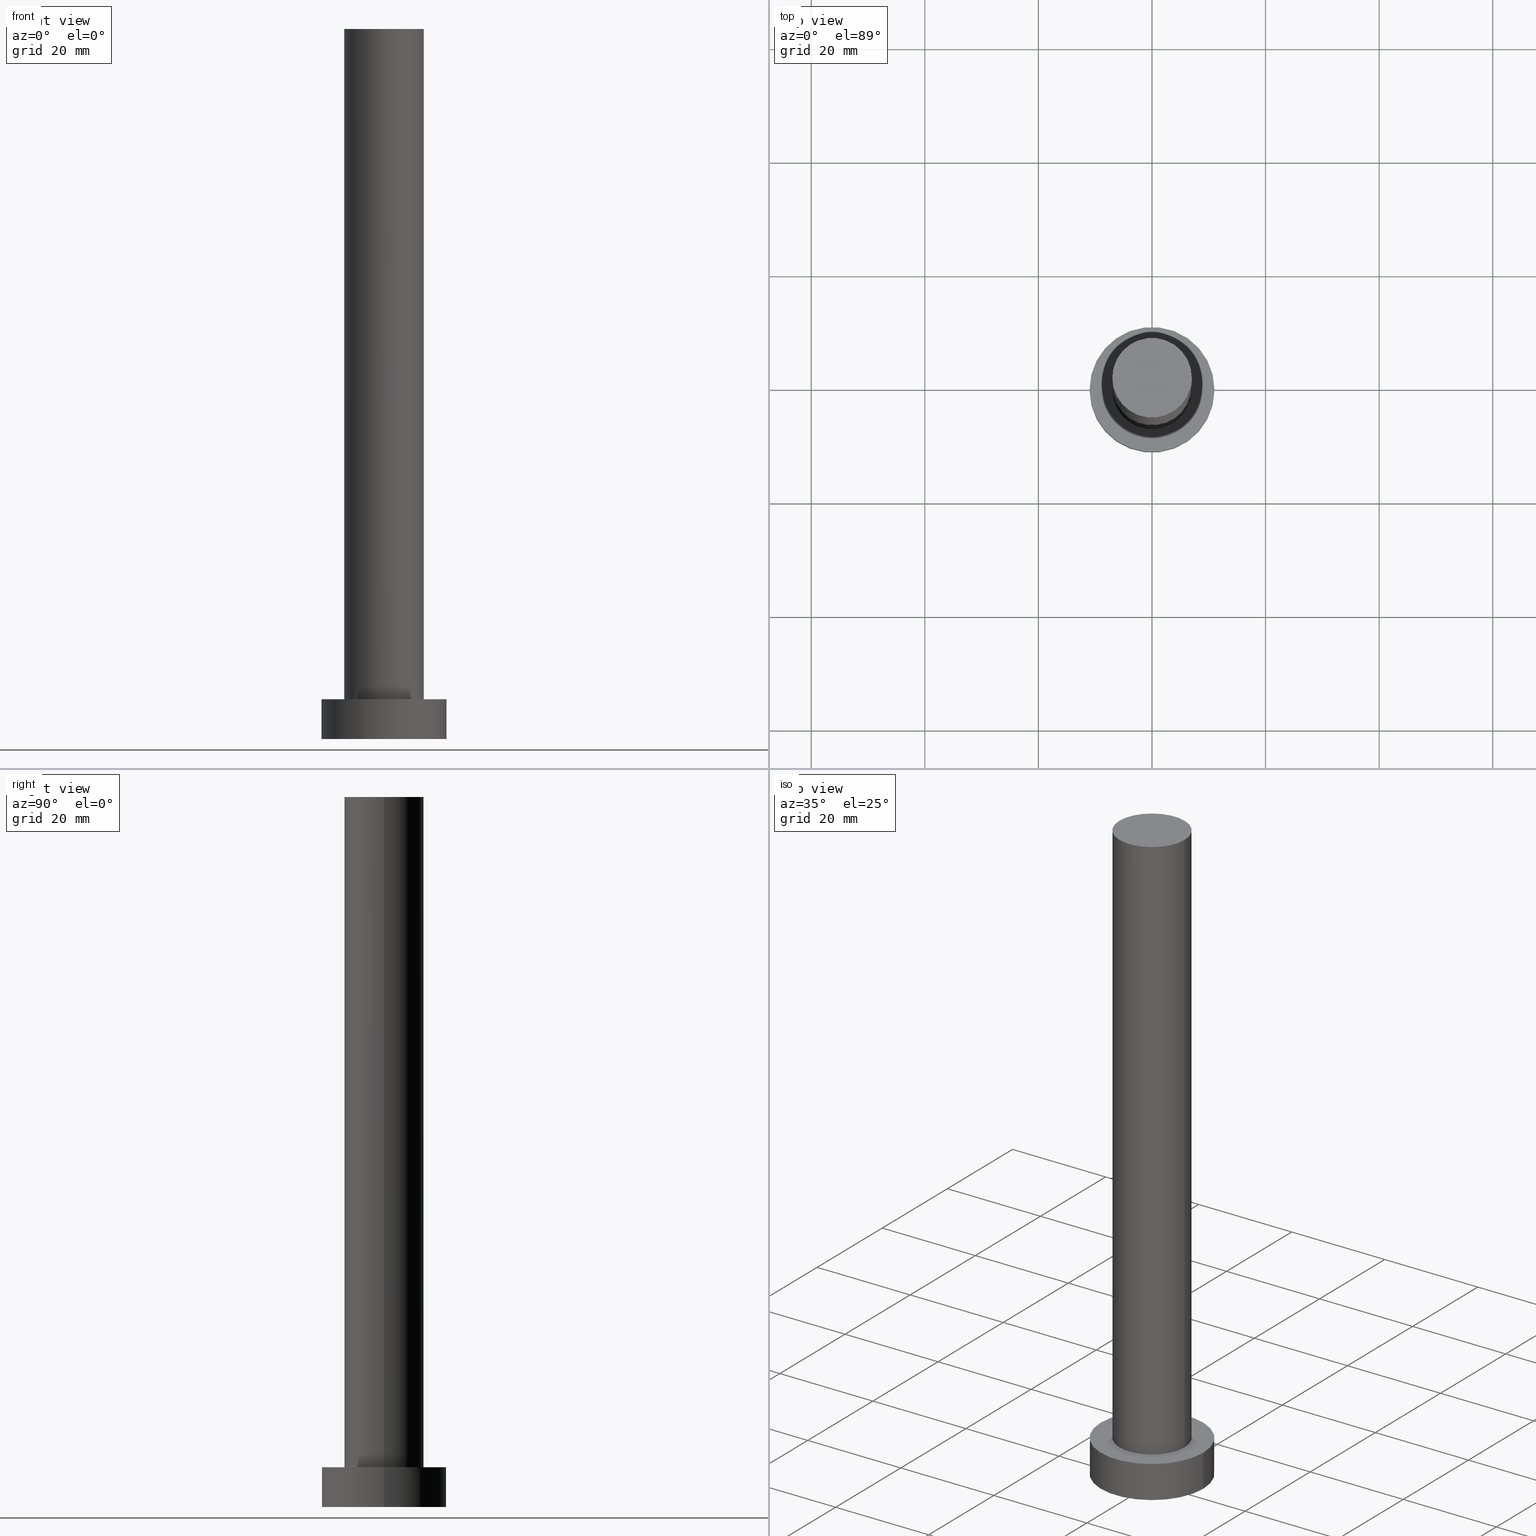
[diagram: canonical four-view strip — front | top / right | iso, engineering-drawing reading convention]
A machine part, canonical four-view strip (front | top / right | iso — engineering-drawing reading convention). The complete STEP part file that produces these views, byte-faithful:
ISO-10303-21;
HEADER;
FILE_DESCRIPTION (( 'STEP AP203' ),
    '1' );
FILE_NAME ('af2a.STEP',
    '2023-02-13T10:43:44',
    ( '' ),
    ( '' ),
    'SwSTEP 2.0',
    'SolidWorks 2019',
    '' );
FILE_SCHEMA (( 'CONFIG_CONTROL_DESIGN' ));
ENDSEC;

DATA;
#1 = COORDINATED_UNIVERSAL_TIME_OFFSET ( 1, 0, .AHEAD. ) ;
#2 = CARTESIAN_POINT ( 'NONE',  ( 0.000000000000000000, 0.000000000000000000, 7.000000000000000000 ) ) ;
#3 = DIRECTION ( 'NONE',  ( -0.000000000000000000, -0.000000000000000000, -1.000000000000000000 ) ) ;
#4 = ORIENTED_EDGE ( 'NONE', *, *, #100, .F. ) ;
#5 = ORIENTED_EDGE ( 'NONE', *, *, #89, .T. ) ;
#6 = LINE ( 'NONE', #182, #122 ) ;
#7 = EDGE_CURVE ( 'NONE', #185, #31, #6, .T. ) ;
#8 = VERTEX_POINT ( 'NONE', #225 ) ;
#9 = CARTESIAN_POINT ( 'NONE',  ( 0.000000000000000000, 0.000000000000000000, 0.000000000000000000 ) ) ;
#10 = PRODUCT_DEFINITION_SHAPE ( 'NONE', 'NONE',  #51 ) ;
#11 = AXIS2_PLACEMENT_3D ( 'NONE', #139, #44, #102 ) ;
#12 = LOCAL_TIME ( 11, 43, 44.00000000000000000, #255 ) ;
#13 = DIRECTION ( 'NONE',  ( -0.000000000000000000, -0.000000000000000000, -1.000000000000000000 ) ) ;
#14 = PLANE ( 'NONE',  #45 ) ;
#15 = ADVANCED_FACE ( 'NONE', ( #28 ), #25, .T. ) ;
#16 = CIRCLE ( 'NONE', #163, 11.00000000000000000 ) ;
#17 = DATE_AND_TIME ( #59, #166 ) ;
#18 = ORIENTED_EDGE ( 'NONE', *, *, #7, .F. ) ;
#19 = DIRECTION ( 'NONE',  ( 0.000000000000000000, 0.000000000000000000, 1.000000000000000000 ) ) ;
#20 = DESIGN_CONTEXT ( 'detailed design', #136, 'design' ) ;
#21 = PERSON_AND_ORGANIZATION_ROLE ( 'creator' ) ;
#22 = DIRECTION ( 'NONE',  ( -0.000000000000000000, -0.000000000000000000, -1.000000000000000000 ) ) ;
#23 = PERSON_AND_ORGANIZATION_ROLE ( 'design_owner' ) ;
#24 = CYLINDRICAL_SURFACE ( 'NONE', #83, 11.00000000000000000 ) ;
#25 = CYLINDRICAL_SURFACE ( 'NONE', #97, 7.000000000000000000 ) ;
#26 = ORIENTED_EDGE ( 'NONE', *, *, #37, .T. ) ;
#27 = EDGE_LOOP ( 'NONE', ( #212, #99 ) ) ;
#28 = FACE_OUTER_BOUND ( 'NONE', #142, .T. ) ;
#29 = CIRCLE ( 'NONE', #75, 7.000000000000000000 ) ;
#30 = DIRECTION ( 'NONE',  ( 1.000000000000000000, 0.000000000000000000, -0.000000000000000000 ) ) ;
#31 = VERTEX_POINT ( 'NONE', #202 ) ;
#32 = CARTESIAN_POINT ( 'NONE',  ( -11.00000000000000000, 0.000000000000000000, 0.000000000000000000 ) ) ;
#33 = CARTESIAN_POINT ( 'NONE',  ( 11.00000000000000000, 1.347111479062088405E-15, 7.000000000000000000 ) ) ;
#34 = CARTESIAN_POINT ( 'NONE',  ( 0.000000000000000000, 0.000000000000000000, 7.000000000000000000 ) ) ;
#35 = ORGANIZATION ( 'NEUR�EN�', 'NEUR�EN�', '' ) ;
#36 = EDGE_CURVE ( 'NONE', #84, #147, #80, .T. ) ;
#37 = EDGE_CURVE ( 'NONE', #185, #206, #64, .T. ) ;
#38 = DATE_AND_TIME ( #57, #12 ) ;
#39 = CC_DESIGN_APPROVAL ( #133, ( #51 ) ) ;
#40 = EDGE_CURVE ( 'NONE', #84, #77, #16, .T. ) ;
#41 = DATE_AND_TIME ( #252, #66 ) ;
#42 = AXIS2_PLACEMENT_3D ( 'NONE', #213, #186, #211 ) ;
#43 = APPROVAL_STATUS ( 'not_yet_approved' ) ;
#44 = DIRECTION ( 'NONE',  ( -0.000000000000000000, -0.000000000000000000, -1.000000000000000000 ) ) ;
#45 = AXIS2_PLACEMENT_3D ( 'NONE', #117, #19, #101 ) ;
#46 = CC_DESIGN_DATE_AND_TIME_ASSIGNMENT ( #41, #154, ( #247 ) ) ;
#47 = CC_DESIGN_DATE_AND_TIME_ASSIGNMENT ( #76, #238, ( #51 ) ) ;
#48 = PERSON_AND_ORGANIZATION ( #53, #35 ) ;
#49 = DIRECTION ( 'NONE',  ( -0.000000000000000000, -0.000000000000000000, -1.000000000000000000 ) ) ;
#50 = ADVANCED_FACE ( 'NONE', ( #203 ), #24, .T. ) ;
#51 = PRODUCT_DEFINITION ( 'NEZN�M�', '', #235, #20 ) ;
#52 = PLANE ( 'NONE',  #151 ) ;
#53 = PERSON ( 'NEUR�EN�', 'NEUR�EN�', 'NEUR�EN�', ('NEUR�EN�'), ('NEUR�EN�'), ('NEUR�EN�') ) ;
#54 = ORIENTED_EDGE ( 'NONE', *, *, #36, .F. ) ;
#55 = CARTESIAN_POINT ( 'NONE',  ( 0.000000000000000000, 0.000000000000000000, 7.000000000000000000 ) ) ;
#56 = CARTESIAN_POINT ( 'NONE',  ( -7.000000000000000000, 0.000000000000000000, 125.0000000000000000 ) ) ;
#57 = CALENDAR_DATE ( 2023, 13, 2 ) ;
#58 = AXIS2_PLACEMENT_3D ( 'NONE', #34, #194, #72 ) ;
#59 = CALENDAR_DATE ( 2023, 13, 2 ) ;
#60 = PERSON_AND_ORGANIZATION ( #53, #35 ) ;
#61 = FACE_OUTER_BOUND ( 'NONE', #107, .T. ) ;
#62 = APPROVAL_STATUS ( 'not_yet_approved' ) ;
#63 = PERSON_AND_ORGANIZATION ( #53, #35 ) ;
#64 = CIRCLE ( 'NONE', #242, 7.000000000000000000 ) ;
#65 = CARTESIAN_POINT ( 'NONE',  ( 0.000000000000000000, 0.000000000000000000, 125.0000000000000000 ) ) ;
#66 = LOCAL_TIME ( 11, 43, 44.00000000000000000, #134 ) ;
#67 = PRODUCT_RELATED_PRODUCT_CATEGORY ( 'detail', '', ( #110 ) ) ;
#68 = ORIENTED_EDGE ( 'NONE', *, *, #37, .F. ) ;
#69 = DIRECTION ( 'NONE',  ( 0.000000000000000000, 0.000000000000000000, 1.000000000000000000 ) ) ;
#70 = CC_DESIGN_PERSON_AND_ORGANIZATION_ASSIGNMENT ( #48, #218, ( #235 ) ) ;
#71 = CIRCLE ( 'NONE', #108, 11.00000000000000000 ) ;
#72 = DIRECTION ( 'NONE',  ( 1.000000000000000000, 0.000000000000000000, 0.000000000000000000 ) ) ;
#73 = CARTESIAN_POINT ( 'NONE',  ( 0.000000000000000000, 0.000000000000000000, 125.0000000000000000 ) ) ;
#74 = CC_DESIGN_PERSON_AND_ORGANIZATION_ASSIGNMENT ( #137, #116, ( #51 ) ) ;
#75 = AXIS2_PLACEMENT_3D ( 'NONE', #73, #216, #93 ) ;
#76 = DATE_AND_TIME ( #98, #125 ) ;
#77 = VERTEX_POINT ( 'NONE', #127 ) ;
#78 = AXIS2_PLACEMENT_3D ( 'NONE', #217, #13, #96 ) ;
#79 = ADVANCED_FACE ( 'NONE', ( #233, #131 ), #146, .T. ) ;
#80 = LINE ( 'NONE', #162, #228 ) ;
#81 = ORIENTED_EDGE ( 'NONE', *, *, #123, .T. ) ;
#82 = CARTESIAN_POINT ( 'NONE',  ( 0.000000000000000000, 0.000000000000000000, 125.0000000000000000 ) ) ;
#83 = AXIS2_PLACEMENT_3D ( 'NONE', #184, #3, #160 ) ;
#84 = VERTEX_POINT ( 'NONE', #33 ) ;
#85 = CARTESIAN_POINT ( 'NONE',  ( 0.000000000000000000, 0.000000000000000000, 7.000000000000000000 ) ) ;
#86 = ORIENTED_EDGE ( 'NONE', *, *, #243, .T. ) ;
#87 = ORIENTED_EDGE ( 'NONE', *, *, #152, .F. ) ;
#88 = CARTESIAN_POINT ( 'NONE',  ( 0.000000000000000000, 0.000000000000000000, 0.000000000000000000 ) ) ;
#89 = EDGE_CURVE ( 'NONE', #8, #31, #207, .T. ) ;
#90 = APPLICATION_CONTEXT ( 'configuration controlled 3d designs of mechanical parts and assemblies' ) ;
#91 = APPROVAL_STATUS ( 'not_yet_approved' ) ;
#92 = LOCAL_TIME ( 11, 43, 44.00000000000000000, #199 ) ;
#93 = DIRECTION ( 'NONE',  ( 1.000000000000000000, 0.000000000000000000, 0.000000000000000000 ) ) ;
#94 = CIRCLE ( 'NONE', #58, 7.000000000000000000 ) ;
#95 = DIRECTION ( 'NONE',  ( -0.000000000000000000, -0.000000000000000000, -1.000000000000000000 ) ) ;
#96 = DIRECTION ( 'NONE',  ( -1.000000000000000000, 0.000000000000000000, 0.000000000000000000 ) ) ;
#97 = AXIS2_PLACEMENT_3D ( 'NONE', #82, #167, #121 ) ;
#98 = CALENDAR_DATE ( 2023, 13, 2 ) ;
#99 = ORIENTED_EDGE ( 'NONE', *, *, #40, .T. ) ;
#100 = EDGE_CURVE ( 'NONE', #77, #84, #150, .T. ) ;
#101 = DIRECTION ( 'NONE',  ( 1.000000000000000000, 0.000000000000000000, -0.000000000000000000 ) ) ;
#102 = DIRECTION ( 'NONE',  ( -1.000000000000000000, 0.000000000000000000, 0.000000000000000000 ) ) ;
#103 = DIRECTION ( 'NONE',  ( 1.000000000000000000, 0.000000000000000000, 0.000000000000000000 ) ) ;
#104 = DIRECTION ( 'NONE',  ( 0.000000000000000000, 0.000000000000000000, 1.000000000000000000 ) ) ;
#105 = ORIENTED_EDGE ( 'NONE', *, *, #7, .T. ) ;
#106 = EDGE_LOOP ( 'NONE', ( #87, #176 ) ) ;
#107 = EDGE_LOOP ( 'NONE', ( #26, #86 ) ) ;
#108 = AXIS2_PLACEMENT_3D ( 'NONE', #88, #130, #189 ) ;
#109 = EDGE_LOOP ( 'NONE', ( #124, #244 ) ) ;
#110 = PRODUCT ( 'af2a', 'af2a', '', ( #201 ) ) ;
#111 = DIRECTION ( 'NONE',  ( -0.000000000000000000, -0.000000000000000000, -1.000000000000000000 ) ) ;
#112 = APPROVAL_DATE_TIME ( #38, #113 ) ;
#113 = APPROVAL ( #91, 'NEUR�EN�' ) ;
#114 =( NAMED_UNIT ( * ) SI_UNIT ( $, .STERADIAN. ) SOLID_ANGLE_UNIT ( ) );
#115 = APPLICATION_PROTOCOL_DEFINITION ( 'international standard', 'config_control_design', 1994, #90 ) ;
#116 = PERSON_AND_ORGANIZATION_ROLE ( 'creator' ) ;
#117 = CARTESIAN_POINT ( 'NONE',  ( 0.000000000000000000, 0.000000000000000000, 125.0000000000000000 ) ) ;
#118 = CC_DESIGN_PERSON_AND_ORGANIZATION_ASSIGNMENT ( #223, #21, ( #235 ) ) ;
#119 = CALENDAR_DATE ( 2023, 13, 2 ) ;
#120 = CARTESIAN_POINT ( 'NONE',  ( 7.000000000000000000, 8.572527594031473190E-16, 125.0000000000000000 ) ) ;
#121 = DIRECTION ( 'NONE',  ( -1.000000000000000000, 0.000000000000000000, 0.000000000000000000 ) ) ;
#122 = VECTOR ( 'NONE', #49, 1000.000000000000000 ) ;
#123 = EDGE_CURVE ( 'NONE', #77, #126, #215, .T. ) ;
#124 = ORIENTED_EDGE ( 'NONE', *, *, #232, .F. ) ;
#125 = LOCAL_TIME ( 11, 43, 44.00000000000000000, #1 ) ;
#126 = VERTEX_POINT ( 'NONE', #32 ) ;
#127 = CARTESIAN_POINT ( 'NONE',  ( -11.00000000000000000, 0.000000000000000000, 7.000000000000000000 ) ) ;
#128 = ORIENTED_EDGE ( 'NONE', *, *, #123, .F. ) ;
#129 = EDGE_CURVE ( 'NONE', #147, #126, #71, .T. ) ;
#130 = DIRECTION ( 'NONE',  ( 0.000000000000000000, 0.000000000000000000, 1.000000000000000000 ) ) ;
#131 = FACE_OUTER_BOUND ( 'NONE', #27, .T. ) ;
#132 = APPROVAL_PERSON_ORGANIZATION ( #236, #113, #192 ) ;
#133 = APPROVAL ( #43, 'NEUR�EN�' ) ;
#134 = COORDINATED_UNIVERSAL_TIME_OFFSET ( 1, 0, .AHEAD. ) ;
#135 = CYLINDRICAL_SURFACE ( 'NONE', #78, 11.00000000000000000 ) ;
#136 = APPLICATION_CONTEXT ( 'configuration controlled 3d designs of mechanical parts and assemblies' ) ;
#137 = PERSON_AND_ORGANIZATION ( #53, #35 ) ;
#138 = CC_DESIGN_PERSON_AND_ORGANIZATION_ASSIGNMENT ( #60, #23, ( #110 ) ) ;
#139 = CARTESIAN_POINT ( 'NONE',  ( 0.000000000000000000, 0.000000000000000000, 125.0000000000000000 ) ) ;
#140 = APPROVAL_DATE_TIME ( #220, #165 ) ;
#141 = LINE ( 'NONE', #120, #210 ) ;
#142 = EDGE_LOOP ( 'NONE', ( #229, #68, #105, #145 ) ) ;
#143 = AXIS2_PLACEMENT_3D ( 'NONE', #181, #156, #239 ) ;
#144 = ADVANCED_BREP_SHAPE_REPRESENTATION ( 'af2a', ( #237, #143 ), #224 ) ;
#145 = ORIENTED_EDGE ( 'NONE', *, *, #232, .T. ) ;
#146 = PLANE ( 'NONE',  #197 ) ;
#147 = VERTEX_POINT ( 'NONE', #172 ) ;
#148 = CARTESIAN_POINT ( 'NONE',  ( -11.00000000000000000, 0.000000000000000000, 7.000000000000000000 ) ) ;
#149 = DIRECTION ( 'NONE',  ( 1.000000000000000000, 0.000000000000000000, -0.000000000000000000 ) ) ;
#150 = CIRCLE ( 'NONE', #42, 11.00000000000000000 ) ;
#151 = AXIS2_PLACEMENT_3D ( 'NONE', #248, #69, #149 ) ;
#152 = EDGE_CURVE ( 'NONE', #126, #147, #249, .T. ) ;
#153 =( NAMED_UNIT ( * ) PLANE_ANGLE_UNIT ( ) SI_UNIT ( $, .RADIAN. ) );
#154 = DATE_TIME_ROLE ( 'classification_date' ) ;
#155 =( LENGTH_UNIT ( ) NAMED_UNIT ( * ) SI_UNIT ( .MILLI., .METRE. ) );
#156 = DIRECTION ( 'NONE',  ( 0.000000000000000000, 0.000000000000000000, 1.000000000000000000 ) ) ;
#157 = UNCERTAINTY_MEASURE_WITH_UNIT (LENGTH_MEASURE( 1.000000000000000082E-05 ), #155, 'distance_accuracy_value', 'NONE');
#158 = DIRECTION ( 'NONE',  ( 1.000000000000000000, 0.000000000000000000, 0.000000000000000000 ) ) ;
#159 = APPLICATION_PROTOCOL_DEFINITION ( 'international standard', 'config_control_design', 1994, #136 ) ;
#160 = DIRECTION ( 'NONE',  ( -1.000000000000000000, 0.000000000000000000, 0.000000000000000000 ) ) ;
#161 = ADVANCED_FACE ( 'NONE', ( #227 ), #52, .F. ) ;
#162 = CARTESIAN_POINT ( 'NONE',  ( 11.00000000000000000, 1.347111479062088405E-15, 7.000000000000000000 ) ) ;
#163 = AXIS2_PLACEMENT_3D ( 'NONE', #2, #104, #158 ) ;
#164 = ORIENTED_EDGE ( 'NONE', *, *, #129, .T. ) ;
#165 = APPROVAL ( #62, 'NEUR�EN�' ) ;
#166 = LOCAL_TIME ( 11, 43, 44.00000000000000000, #253 ) ;
#167 = DIRECTION ( 'NONE',  ( -0.000000000000000000, -0.000000000000000000, -1.000000000000000000 ) ) ;
#168 = EDGE_LOOP ( 'NONE', ( #214, #208, #164, #128 ) ) ;
#169 = DIRECTION ( 'NONE',  ( 0.000000000000000000, 0.000000000000000000, 1.000000000000000000 ) ) ;
#170 = EDGE_LOOP ( 'NONE', ( #54, #4, #81, #241 ) ) ;
#171 = CLOSED_SHELL ( 'NONE', ( #200, #226, #50, #79, #161, #15, #193 ) ) ;
#172 = CARTESIAN_POINT ( 'NONE',  ( 11.00000000000000000, 1.347111479062088405E-15, 0.000000000000000000 ) ) ;
#173 = CC_DESIGN_PERSON_AND_ORGANIZATION_ASSIGNMENT ( #219, #175, ( #247 ) ) ;
#174 = CARTESIAN_POINT ( 'NONE',  ( 7.000000000000000000, 8.572527594031473190E-16, 125.0000000000000000 ) ) ;
#175 = PERSON_AND_ORGANIZATION_ROLE ( 'classification_officer' ) ;
#176 = ORIENTED_EDGE ( 'NONE', *, *, #129, .F. ) ;
#177 = CC_DESIGN_APPROVAL ( #165, ( #235 ) ) ;
#178 = APPROVAL_DATE_TIME ( #17, #133 ) ;
#179 = CYLINDRICAL_SURFACE ( 'NONE', #11, 7.000000000000000000 ) ;
#180 = APPROVAL_ROLE ( '' ) ;
#181 = CARTESIAN_POINT ( 'NONE',  ( 0.000000000000000000, 0.000000000000000000, 0.000000000000000000 ) ) ;
#182 = CARTESIAN_POINT ( 'NONE',  ( -7.000000000000000000, 0.000000000000000000, 125.0000000000000000 ) ) ;
#183 = PERSON_AND_ORGANIZATION ( #53, #35 ) ;
#184 = CARTESIAN_POINT ( 'NONE',  ( 0.000000000000000000, 0.000000000000000000, 7.000000000000000000 ) ) ;
#185 = VERTEX_POINT ( 'NONE', #56 ) ;
#186 = DIRECTION ( 'NONE',  ( 0.000000000000000000, 0.000000000000000000, 1.000000000000000000 ) ) ;
#187 = DIRECTION ( 'NONE',  ( 0.000000000000000000, 0.000000000000000000, 1.000000000000000000 ) ) ;
#188 = EDGE_LOOP ( 'NONE', ( #246, #254, #5, #18 ) ) ;
#189 = DIRECTION ( 'NONE',  ( 1.000000000000000000, 0.000000000000000000, 0.000000000000000000 ) ) ;
#190 = DIRECTION ( 'NONE',  ( 1.000000000000000000, 0.000000000000000000, 0.000000000000000000 ) ) ;
#191 = CC_DESIGN_SECURITY_CLASSIFICATION ( #247, ( #235 ) ) ;
#192 = APPROVAL_ROLE ( '' ) ;
#193 = ADVANCED_FACE ( 'NONE', ( #61 ), #14, .T. ) ;
#194 = DIRECTION ( 'NONE',  ( 0.000000000000000000, 0.000000000000000000, 1.000000000000000000 ) ) ;
#195 = APPROVAL_ROLE ( '' ) ;
#196 = SECURITY_CLASSIFICATION_LEVEL ( 'unclassified' ) ;
#197 = AXIS2_PLACEMENT_3D ( 'NONE', #55, #187, #30 ) ;
#198 = CC_DESIGN_APPROVAL ( #113, ( #247 ) ) ;
#199 = COORDINATED_UNIVERSAL_TIME_OFFSET ( 1, 0, .AHEAD. ) ;
#200 = ADVANCED_FACE ( 'NONE', ( #240 ), #179, .T. ) ;
#201 = MECHANICAL_CONTEXT ( 'NONE', #90, 'mechanical' ) ;
#202 = CARTESIAN_POINT ( 'NONE',  ( -7.000000000000000000, 0.000000000000000000, 7.000000000000000000 ) ) ;
#203 = FACE_OUTER_BOUND ( 'NONE', #170, .T. ) ;
#204 = EDGE_CURVE ( 'NONE', #206, #8, #141, .T. ) ;
#205 = DIRECTION ( 'NONE',  ( 0.000000000000000000, 0.000000000000000000, 1.000000000000000000 ) ) ;
#206 = VERTEX_POINT ( 'NONE', #174 ) ;
#207 = CIRCLE ( 'NONE', #234, 7.000000000000000000 ) ;
#208 = ORIENTED_EDGE ( 'NONE', *, *, #36, .T. ) ;
#209 = APPROVAL_PERSON_ORGANIZATION ( #183, #133, #195 ) ;
#210 = VECTOR ( 'NONE', #95, 1000.000000000000000 ) ;
#211 = DIRECTION ( 'NONE',  ( 1.000000000000000000, 0.000000000000000000, 0.000000000000000000 ) ) ;
#212 = ORIENTED_EDGE ( 'NONE', *, *, #100, .T. ) ;
#213 = CARTESIAN_POINT ( 'NONE',  ( 0.000000000000000000, 0.000000000000000000, 7.000000000000000000 ) ) ;
#214 = ORIENTED_EDGE ( 'NONE', *, *, #40, .F. ) ;
#215 = LINE ( 'NONE', #148, #221 ) ;
#216 = DIRECTION ( 'NONE',  ( 0.000000000000000000, 0.000000000000000000, 1.000000000000000000 ) ) ;
#217 = CARTESIAN_POINT ( 'NONE',  ( 0.000000000000000000, 0.000000000000000000, 7.000000000000000000 ) ) ;
#218 = PERSON_AND_ORGANIZATION_ROLE ( 'design_supplier' ) ;
#219 = PERSON_AND_ORGANIZATION ( #53, #35 ) ;
#220 = DATE_AND_TIME ( #119, #92 ) ;
#221 = VECTOR ( 'NONE', #111, 1000.000000000000000 ) ;
#222 = AXIS2_PLACEMENT_3D ( 'NONE', #9, #169, #231 ) ;
#223 = PERSON_AND_ORGANIZATION ( #53, #35 ) ;
#224 =( GEOMETRIC_REPRESENTATION_CONTEXT ( 3 ) GLOBAL_UNCERTAINTY_ASSIGNED_CONTEXT ( ( #157 ) ) GLOBAL_UNIT_ASSIGNED_CONTEXT ( ( #155, #153, #114 ) ) REPRESENTATION_CONTEXT ( 'NONE', 'WORKASPACE' ) );
#225 = CARTESIAN_POINT ( 'NONE',  ( 7.000000000000000000, 8.572527594031473190E-16, 7.000000000000000000 ) ) ;
#226 = ADVANCED_FACE ( 'NONE', ( #251 ), #135, .T. ) ;
#227 = FACE_OUTER_BOUND ( 'NONE', #106, .T. ) ;
#228 = VECTOR ( 'NONE', #22, 1000.000000000000000 ) ;
#229 = ORIENTED_EDGE ( 'NONE', *, *, #204, .F. ) ;
#230 = APPROVAL_PERSON_ORGANIZATION ( #63, #165, #180 ) ;
#231 = DIRECTION ( 'NONE',  ( 1.000000000000000000, 0.000000000000000000, 0.000000000000000000 ) ) ;
#232 = EDGE_CURVE ( 'NONE', #31, #8, #94, .T. ) ;
#233 = FACE_BOUND ( 'NONE', #109, .T. ) ;
#234 = AXIS2_PLACEMENT_3D ( 'NONE', #85, #245, #190 ) ;
#235 = PRODUCT_DEFINITION_FORMATION_WITH_SPECIFIED_SOURCE ( 'LIBOVOLN�', '', #110, .NOT_KNOWN. ) ;
#236 = PERSON_AND_ORGANIZATION ( #53, #35 ) ;
#237 = MANIFOLD_SOLID_BREP ( 'P�idat vysunut�m3', #171 ) ;
#238 = DATE_TIME_ROLE ( 'creation_date' ) ;
#239 = DIRECTION ( 'NONE',  ( 1.000000000000000000, 0.000000000000000000, 0.000000000000000000 ) ) ;
#240 = FACE_OUTER_BOUND ( 'NONE', #188, .T. ) ;
#241 = ORIENTED_EDGE ( 'NONE', *, *, #152, .T. ) ;
#242 = AXIS2_PLACEMENT_3D ( 'NONE', #65, #205, #103 ) ;
#243 = EDGE_CURVE ( 'NONE', #206, #185, #29, .T. ) ;
#244 = ORIENTED_EDGE ( 'NONE', *, *, #89, .F. ) ;
#245 = DIRECTION ( 'NONE',  ( 0.000000000000000000, 0.000000000000000000, 1.000000000000000000 ) ) ;
#246 = ORIENTED_EDGE ( 'NONE', *, *, #243, .F. ) ;
#247 = SECURITY_CLASSIFICATION ( '', '', #196 ) ;
#248 = CARTESIAN_POINT ( 'NONE',  ( 0.000000000000000000, 0.000000000000000000, 0.000000000000000000 ) ) ;
#249 = CIRCLE ( 'NONE', #222, 11.00000000000000000 ) ;
#250 = SHAPE_DEFINITION_REPRESENTATION ( #10, #144 ) ;
#251 = FACE_OUTER_BOUND ( 'NONE', #168, .T. ) ;
#252 = CALENDAR_DATE ( 2023, 13, 2 ) ;
#253 = COORDINATED_UNIVERSAL_TIME_OFFSET ( 1, 0, .AHEAD. ) ;
#254 = ORIENTED_EDGE ( 'NONE', *, *, #204, .T. ) ;
#255 = COORDINATED_UNIVERSAL_TIME_OFFSET ( 1, 0, .AHEAD. ) ;
ENDSEC;
END-ISO-10303-21;
